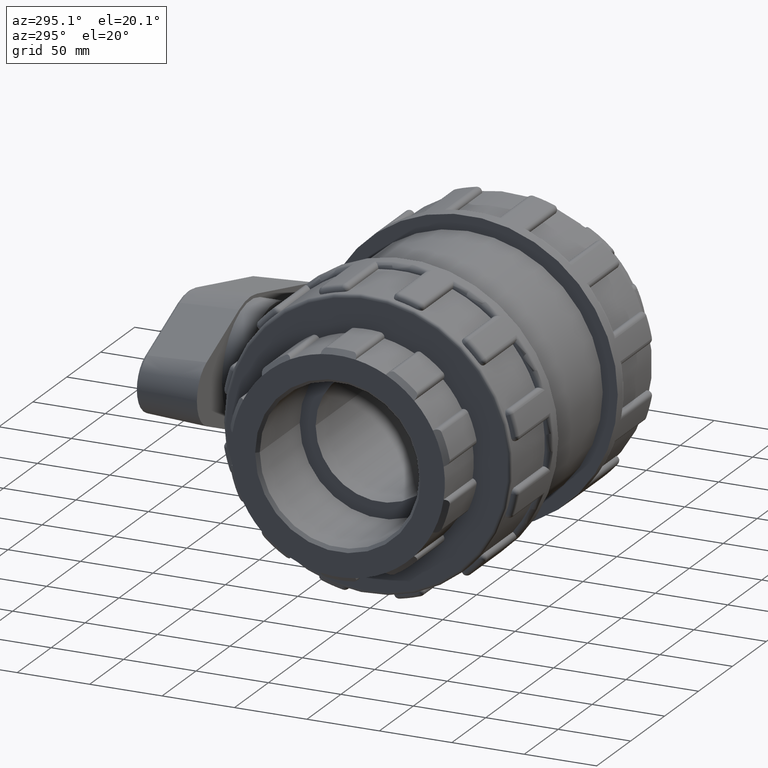
[diagram: clean part render]
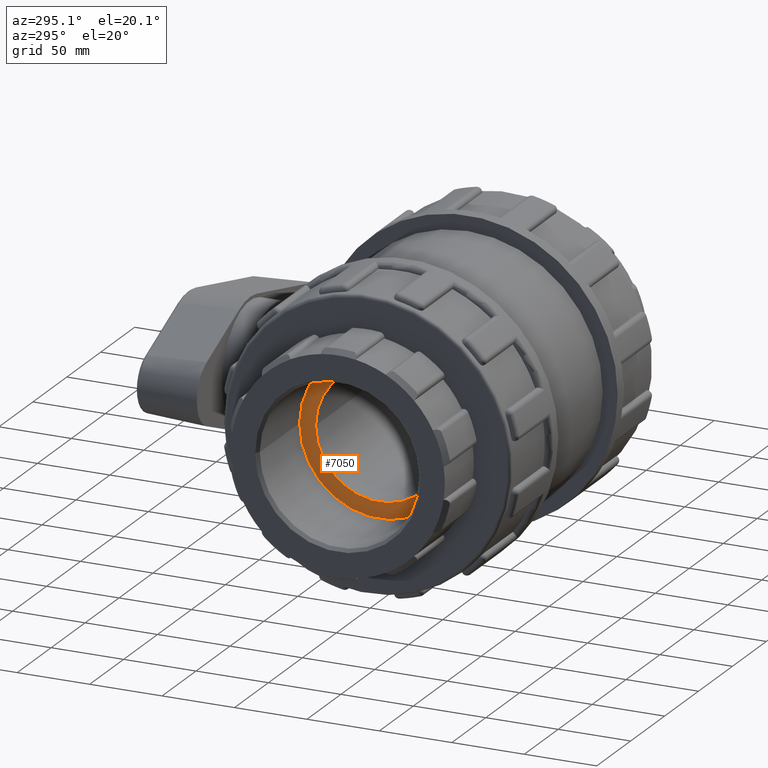
[diagram: same view with one face highlighted and labeled with its STEP entity id]
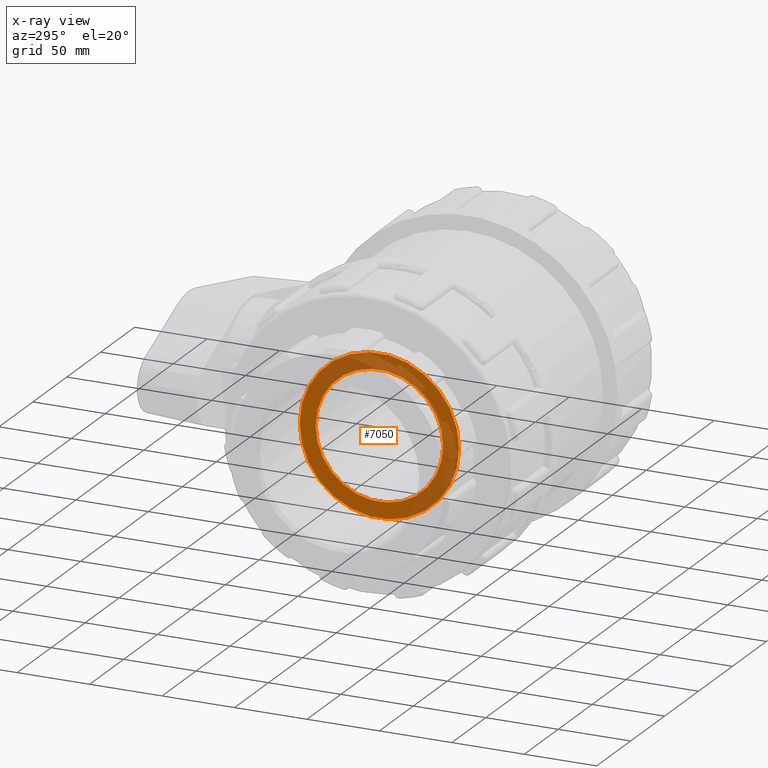
[diagram: x-ray of the same camera — body ghosted, the highlighted face saturated]
A machine part, auxiliary view. The second image highlights one B-rep face of the part: STEP entity #7050.
The next image is the same camera in x-ray: the body ghosted, the highlighted face saturated — about 42% of this face is hidden behind the body in this view.
In plain terms, the highlighted planar face has unit normal (-1, 0, 0).
Its self-contained STEP definition (entity closure, byte-faithful):
#225=FACE_BOUND('',#1313,.T.);
#339=PLANE('',#8005);
#853=FACE_OUTER_BOUND('',#1312,.T.);
#1312=EDGE_LOOP('',(#6423));
#1313=EDGE_LOOP('',(#6424));
#2275=CIRCLE('',#7351,55.036);
#2624=CIRCLE('',#8004,44.0288);
#2823=VERTEX_POINT('',#11461);
#3268=VERTEX_POINT('',#14047);
#3587=EDGE_CURVE('',#2823,#2823,#2275,.T.);
#4320=EDGE_CURVE('',#3268,#3268,#2624,.T.);
#6423=ORIENTED_EDGE('',*,*,#3587,.F.);
#6424=ORIENTED_EDGE('',*,*,#4320,.T.);
#7050=ADVANCED_FACE('',(#853,#225),#339,.T.);
#7351=AXIS2_PLACEMENT_3D('',#11462,#8712,#8713);
#8004=AXIS2_PLACEMENT_3D('',#14048,#10306,#10307);
#8005=AXIS2_PLACEMENT_3D('',#14049,#10308,#10309);
#8712=DIRECTION('center_axis',(1.,0.,0.));
#8713=DIRECTION('ref_axis',(0.,0.,-1.));
#10306=DIRECTION('center_axis',(1.,0.,0.));
#10307=DIRECTION('ref_axis',(0.,0.,-1.));
#10308=DIRECTION('center_axis',(-1.,0.,0.));
#10309=DIRECTION('ref_axis',(0.,0.,1.));
#11461=CARTESIAN_POINT('',(-86.5,55.036,0.));
#11462=CARTESIAN_POINT('Origin',(-86.5,0.,0.));
#14047=CARTESIAN_POINT('',(-86.5,44.0288,0.));
#14048=CARTESIAN_POINT('Origin',(-86.5,0.,0.));
#14049=CARTESIAN_POINT('Origin',(-86.5,55.036,0.));